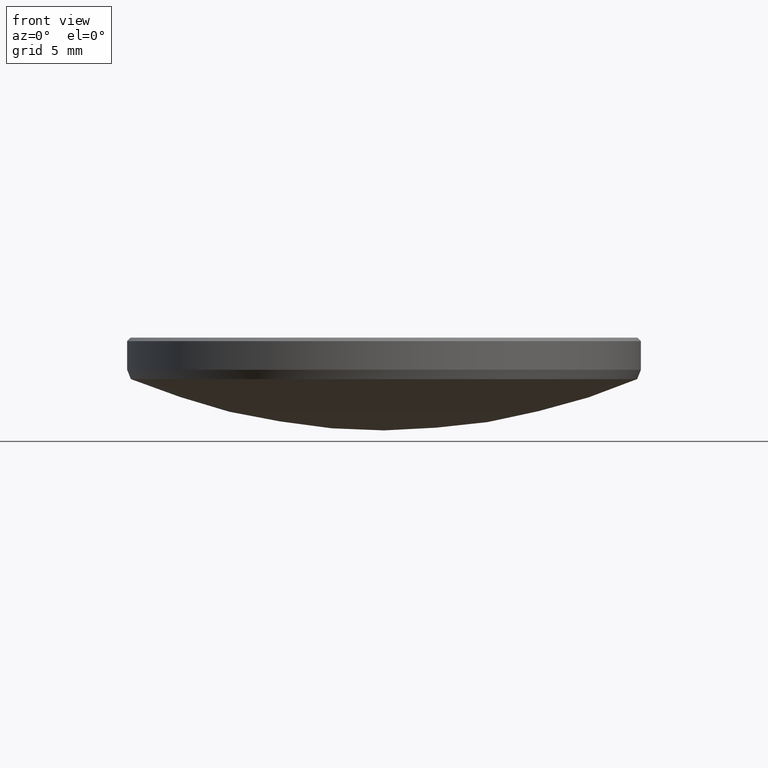
[diagram: clean part render]
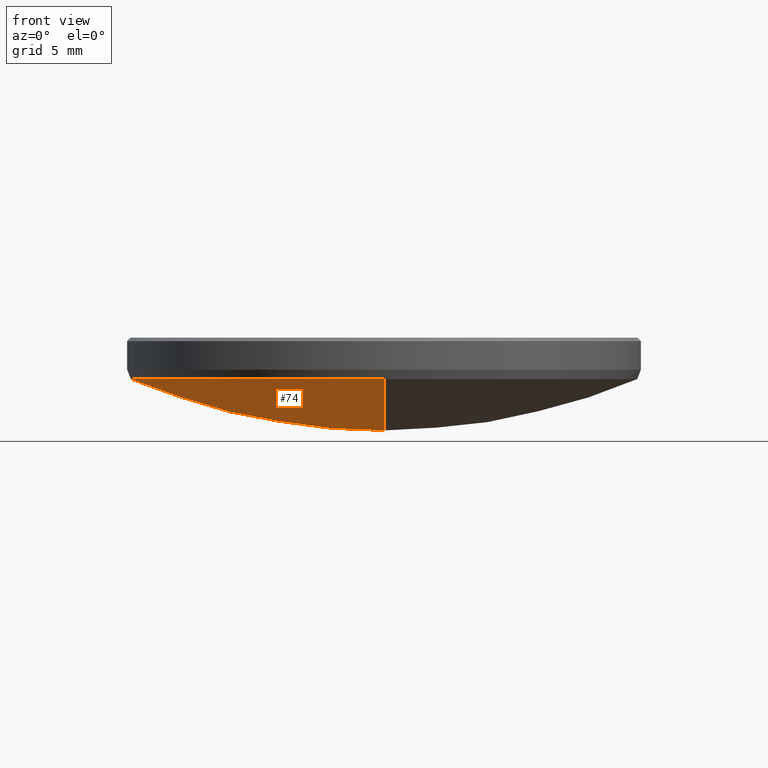
[diagram: same view with one face highlighted and labeled with its STEP entity id]
A machine part, front view. The second image highlights one B-rep face of the part: STEP entity #74.
In plain terms, the highlighted spherical surface has radius 32.14 mm.
Its self-contained STEP definition (entity closure, byte-faithful):
#5 = EDGE_CURVE ( 'NONE', #200, #192, #256, .T. ) ;
#8 = CARTESIAN_POINT ( 'NONE',  ( 0.000000000000000000, 0.000000000000000000, 33.52438991749025377 ) ) ;
#10 = FACE_OUTER_BOUND ( 'NONE', #329, .T. ) ;
#24 = EDGE_CURVE ( 'NONE', #330, #98, #56, .T. ) ;
#32 = DIRECTION ( 'NONE',  ( -1.000000000000000000, 0.000000000000000000, 0.000000000000000000 ) ) ;
#40 = DIRECTION ( 'NONE',  ( 0.000000000000000000, 0.000000000000000000, -1.000000000000000000 ) ) ;
#53 = ORIENTED_EDGE ( 'NONE', *, *, #93, .T. ) ;
#56 = CIRCLE ( 'NONE', #296, 32.14000000000000057 ) ;
#57 = CARTESIAN_POINT ( 'NONE',  ( 0.000000000000000000, 0.000000000000000000, 33.52438991749025377 ) ) ;
#64 = CARTESIAN_POINT ( 'NONE',  ( 0.000000000000000000, 12.51660009051965972, 3.921783238787048820 ) ) ;
#66 = EDGE_CURVE ( 'NONE', #330, #200, #324, .T. ) ;
#74 = ADVANCED_FACE ( 'NONE', ( #10 ), #82, .T. ) ;
#75 = ORIENTED_EDGE ( 'NONE', *, *, #24, .F. ) ;
#82 = SPHERICAL_SURFACE ( 'NONE', #253, 32.14000000000000057 ) ;
#85 = CARTESIAN_POINT ( 'NONE',  ( 0.000000000000000000, 0.000000000000000000, 33.52438991749025377 ) ) ;
#91 = AXIS2_PLACEMENT_3D ( 'NONE', #57, #131, #233 ) ;
#93 = EDGE_CURVE ( 'NONE', #192, #98, #106, .T. ) ;
#98 = VERTEX_POINT ( 'NONE', #64 ) ;
#106 = CIRCLE ( 'NONE', #283, 12.51660009051966682 ) ;
#107 = DIRECTION ( 'NONE',  ( 0.000000000000000000, 1.000000000000000000, 0.000000000000000000 ) ) ;
#108 = AXIS2_PLACEMENT_3D ( 'NONE', #149, #109, #208 ) ;
#109 = DIRECTION ( 'NONE',  ( 0.000000000000000000, 0.000000000000000000, -1.000000000000000000 ) ) ;
#131 = DIRECTION ( 'NONE',  ( -1.000000000000000000, 1.224646799147353207E-16, 0.000000000000000000 ) ) ;
#149 = CARTESIAN_POINT ( 'NONE',  ( 0.000000000000000000, 0.000000000000000000, 3.921783238787050596 ) ) ;
#156 = CARTESIAN_POINT ( 'NONE',  ( -12.51660009051966860, 1.544071429311688688E-15, 3.921783238787050596 ) ) ;
#167 = ORIENTED_EDGE ( 'NONE', *, *, #5, .T. ) ;
#176 = DIRECTION ( 'NONE',  ( 0.000000000000000000, 0.000000000000000000, -1.000000000000000000 ) ) ;
#179 = DIRECTION ( 'NONE',  ( 1.000000000000000000, -0.000000000000000000, 0.000000000000000000 ) ) ;
#192 = VERTEX_POINT ( 'NONE', #156 ) ;
#200 = VERTEX_POINT ( 'NONE', #242 ) ;
#202 = CARTESIAN_POINT ( 'NONE',  ( 0.000000000000000000, 1.968007406229796560E-15, 1.384389917490250088 ) ) ;
#208 = DIRECTION ( 'NONE',  ( 1.000000000000000000, 0.000000000000000000, 0.000000000000000000 ) ) ;
#228 = CARTESIAN_POINT ( 'NONE',  ( 0.000000000000000000, 0.000000000000000000, 3.921783238787050596 ) ) ;
#233 = DIRECTION ( 'NONE',  ( -1.224646799147353207E-16, -1.000000000000000000, 0.000000000000000000 ) ) ;
#242 = CARTESIAN_POINT ( 'NONE',  ( -1.532841423706237562E-15, -12.51660009051965972, 3.921783238787048820 ) ) ;
#253 = AXIS2_PLACEMENT_3D ( 'NONE', #85, #32, #107 ) ;
#256 = CIRCLE ( 'NONE', #108, 12.51660009051966682 ) ;
#283 = AXIS2_PLACEMENT_3D ( 'NONE', #228, #176, #290 ) ;
#290 = DIRECTION ( 'NONE',  ( 1.000000000000000000, 0.000000000000000000, 0.000000000000000000 ) ) ;
#296 = AXIS2_PLACEMENT_3D ( 'NONE', #8, #179, #40 ) ;
#305 = ORIENTED_EDGE ( 'NONE', *, *, #66, .T. ) ;
#324 = CIRCLE ( 'NONE', #91, 32.14000000000000057 ) ;
#329 = EDGE_LOOP ( 'NONE', ( #75, #305, #167, #53 ) ) ;
#330 = VERTEX_POINT ( 'NONE', #202 ) ;